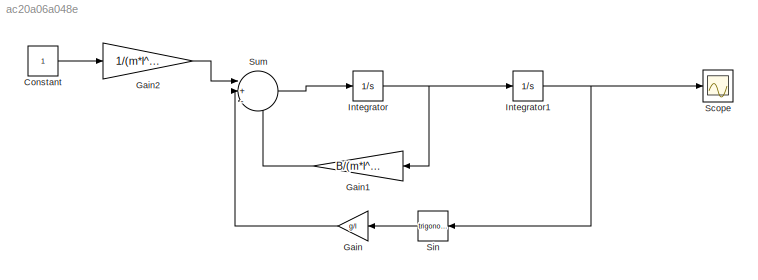
MODEL slx_ac20a06a048e
KIND model
CONFIG AbsTol = auto
CONFIG EnableMultiTasking = off
CONFIG FixedStep = auto
CONFIG InitFcn = m=1;\ng=9.81;\nl=1.5;\nB=1.96;
CONFIG MaxStep = auto
CONFIG MinStep = auto
CONFIG RelTol = 1e-3
CONFIG SampleTimeConstraint = Unconstrained
CONFIG SolverName = VariableStepAuto
CONFIG StartTime = 0.0
CONFIG StopTime = 10.0
BLOCK [Constant] Constant
BLOCK [Gain] Gain
  Gain = g/l
  NameLocation = top
BLOCK [Gain] Gain1
  Gain = B/(m*l^2)
  NameLocation = top
BLOCK [Gain] Gain2
  Gain = 1/(m*l^2)
BLOCK [Integrator] Integrator
BLOCK [Integrator] Integrator1
BLOCK [Scope] Scope
  Floating = off
  GraphicalSettings = {"GraphicalSettings":{"LegacySettings":true,"Style":{"Style":{"PlotType":"Auto"}}}}
  NumInputPorts = 1
  WasSavedAsWebScope = on
BLOCK [Trigonometry] Sin
  NameLocation = top
BLOCK [Sum] Sum
  Inputs = |+--
LINE Constant:1 -> Gain2:1
LINE Gain1:1 -> Sum:3
LINE Gain2:1 -> Sum:1
LINE Gain:1 -> Sum:2
NET Integrator1:1 -> Scope:1, Sin:1
NET Integrator:1 -> Gain1:1, Integrator1:1
LINE Sin:1 -> Gain:1
LINE Sum:1 -> Integrator:1
note: NET lines group one-source signal fan-out (src -> all destinations, sorted); 1:1 wires keep LINE
